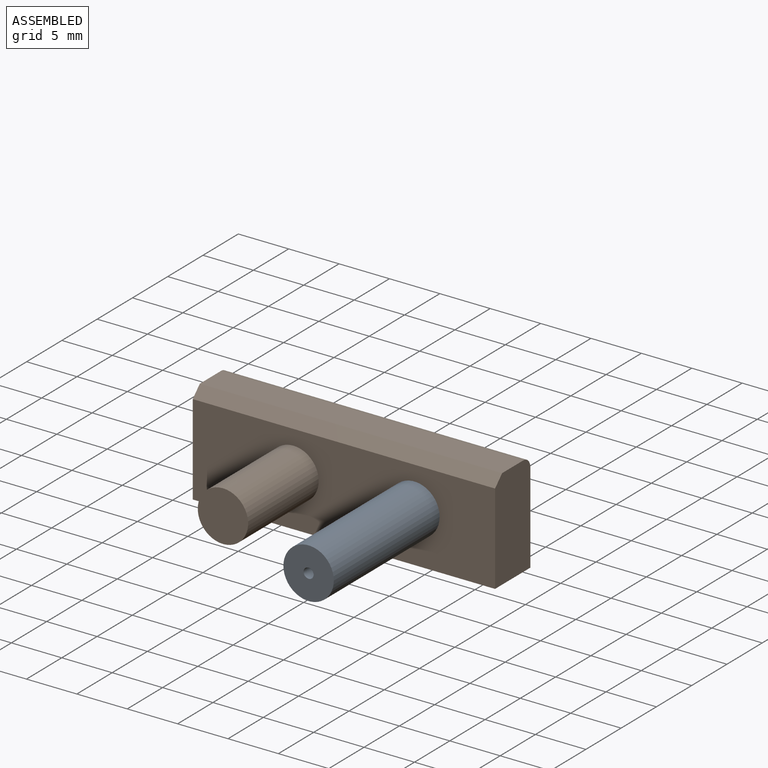
[diagram: assembled view]
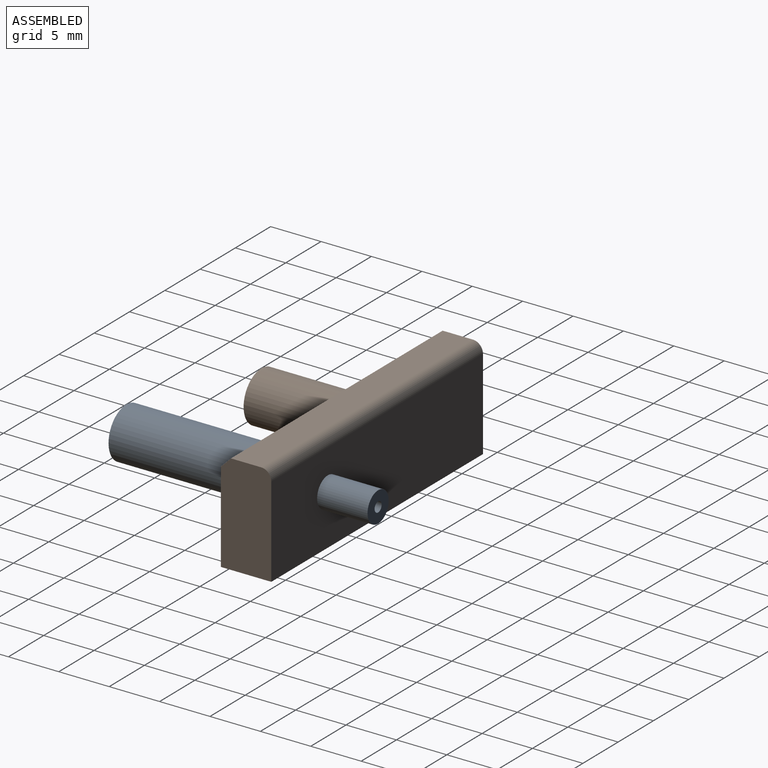
[diagram: assembled view, second angle]
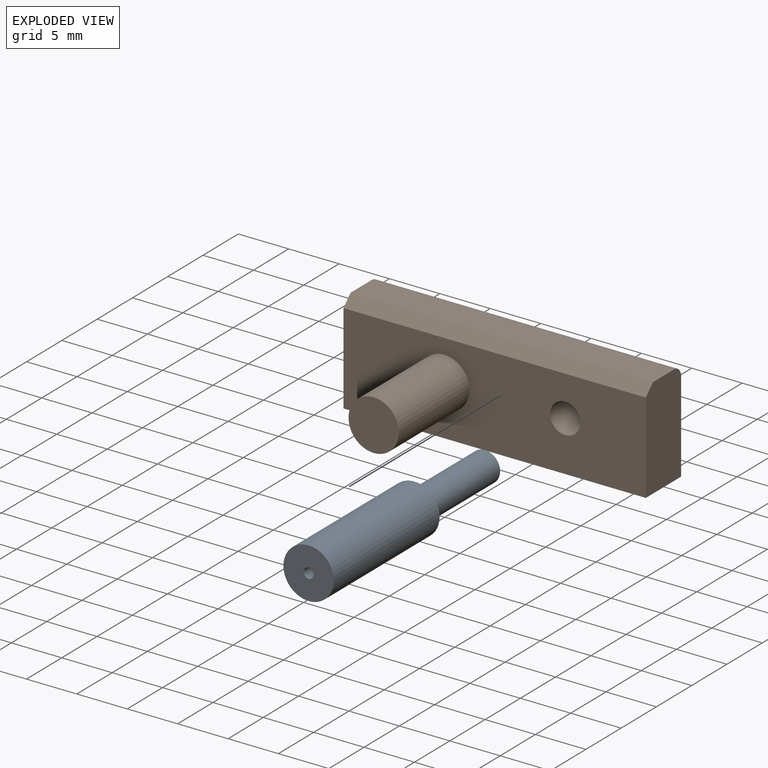
[diagram: exploded view]
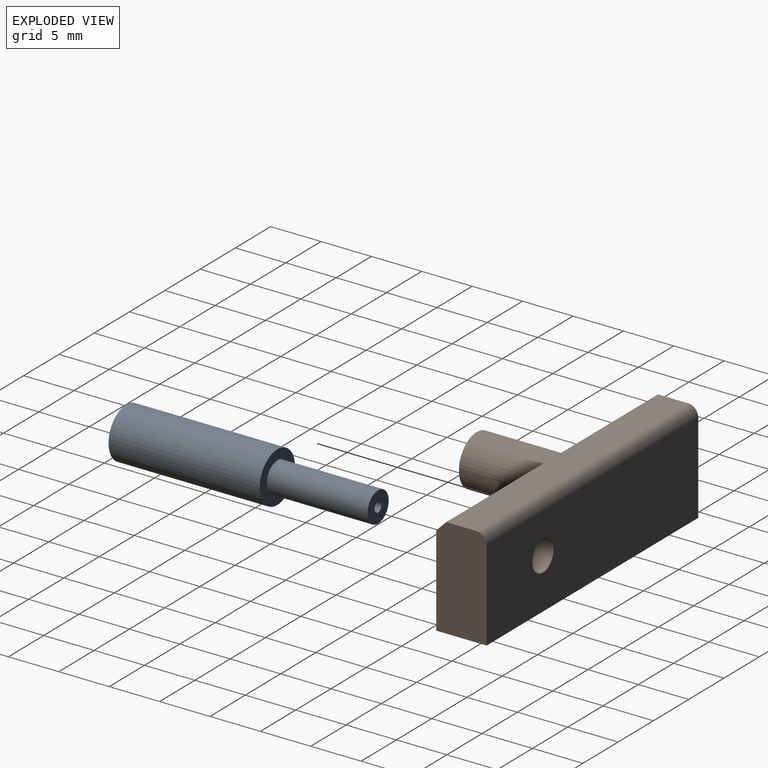
[diagram: exploded view, second angle]
ASSEMBLY  parts=2 mates=2
PART A: 6 faces, bbox 25x5x5 mm
  f0: plane 3x3mm, normal (-1,0,0), area 6.3mm2, adj f1,f5
  f1: cylinder r=0.5mm len=25mm, axis (-1,0,0), area 78.5mm2, adj f0,f2
  f2: plane 5x5mm, normal (1,0,0), area 18.8mm2, adj f1,f3
  f3: cylinder r=2.5mm len=15mm, axis (-1,0,0), area 235.6mm2, adj f2,f4
  f4: plane 5x5mm, normal (-1,0,0), area 12.6mm2, adj f3,f5
  f5: cylinder r=1.5mm len=10mm, axis (-1,0,0), area 94.2mm2, adj f0,f4
PART B: 11 faces, bbox 30x15x10 mm
  f0: plane 30x3mm, normal (0,0,1), area 90mm2, adj f1,f3,f9,f10
  f1: plane 10x5mm, normal (-1,0,0), area 49.3mm2, adj f0,f2,f4,f5,f9,f10
  f2: plane 30x5mm, normal (0,0,-1), area 150mm2, adj f1,f3,f4,f5
  f3: plane 10x5mm, normal (1,0,0), area 49.3mm2, adj f0,f2,f4,f5,f9,f10
  f4: plane 30x9mm, normal (0,-1,0), area 243.3mm2, adj f1,f2,f3,f6,f8,f9
  f5: plane 30x9mm, normal (0,1,0), area 262.9mm2, adj f1,f2,f3,f8,f10
  f6: cylinder r=2.5mm len=10mm, axis (0,1,0), area 157.1mm2, adj f4,f7
  f7: plane 5x5mm, normal (0,-1,0), area 19.6mm2, adj f6
  f8: cylinder r=1.5mm len=5mm, axis (0,-1,0), area 47.1mm2, adj f4,f5
  f9: plane 30x1mm, normal (0,-0.71,0.71), area 42.4mm2, adj f0,f1,f3,f4
  f10: cylinder r=1mm len=30mm, axis (-1,0,0), area 47.1mm2, adj f0,f1,f3,f5
PLACE A rot(axis=(-0.58,0.58,-0.58),120deg) t=(4,14.98,0.69)mm
PLACE B t=(-18,9.98,-10.11)mm
MATE cylindrical A.f1 <-> B.f8  axis (0,1,0) through (4,14.98,0.69)mm
MATE planar A.f1 <-> B.f4  axis (0,1,0) through (4,4.98,0.69)mm
